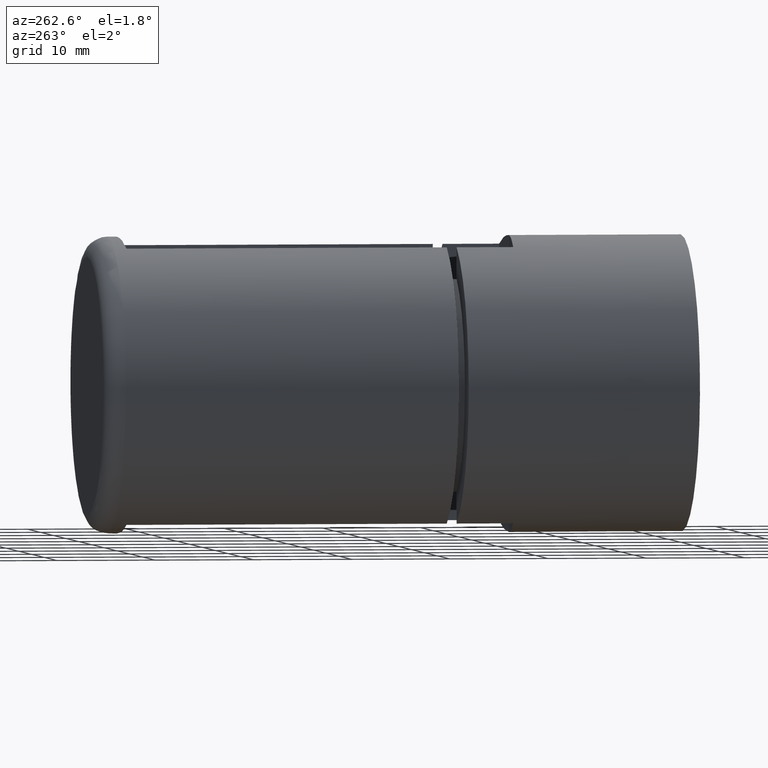
[diagram: clean part render]
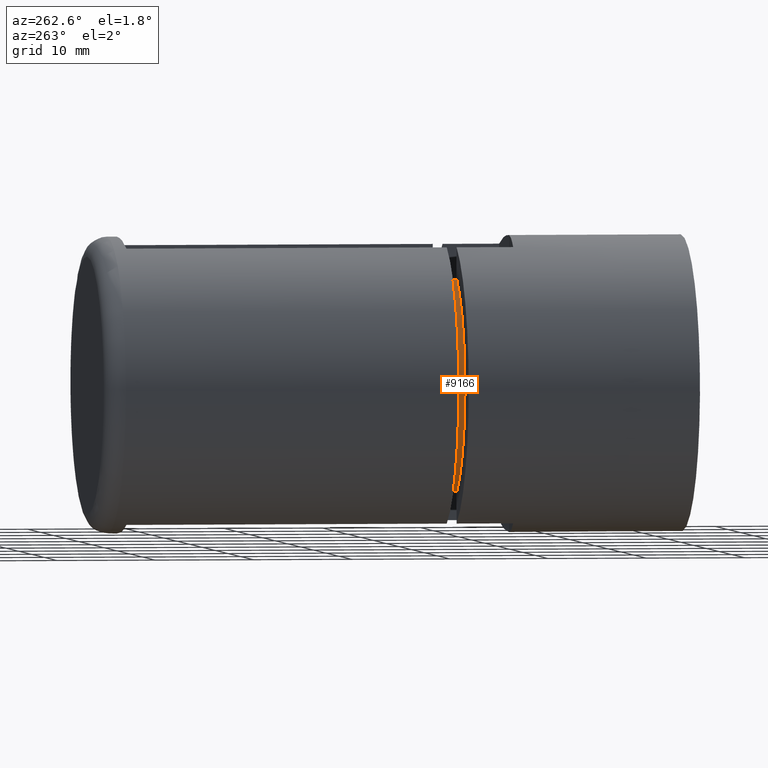
[diagram: same view with one face highlighted and labeled with its STEP entity id]
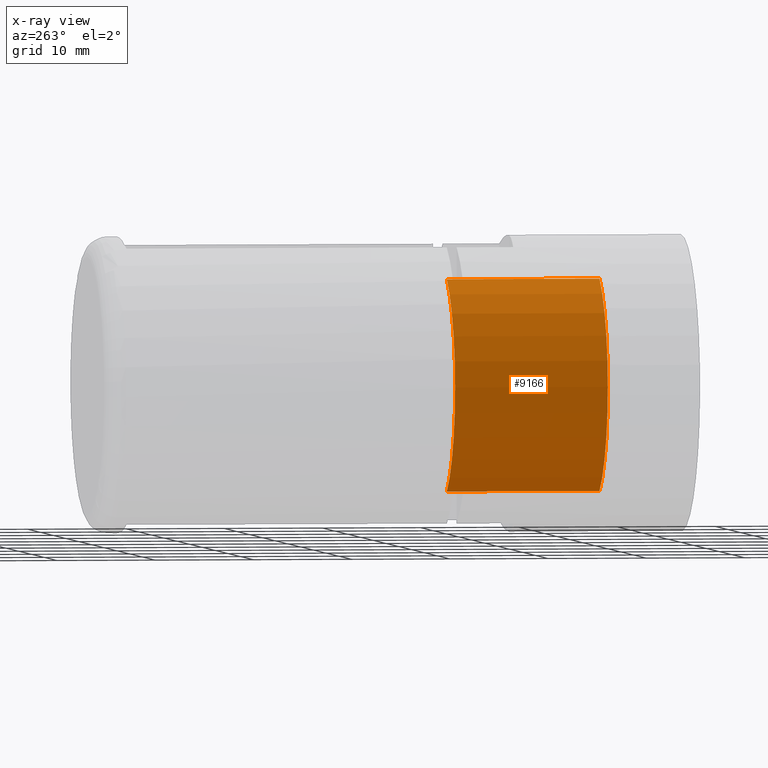
[diagram: x-ray of the same camera — body ghosted, the highlighted face saturated]
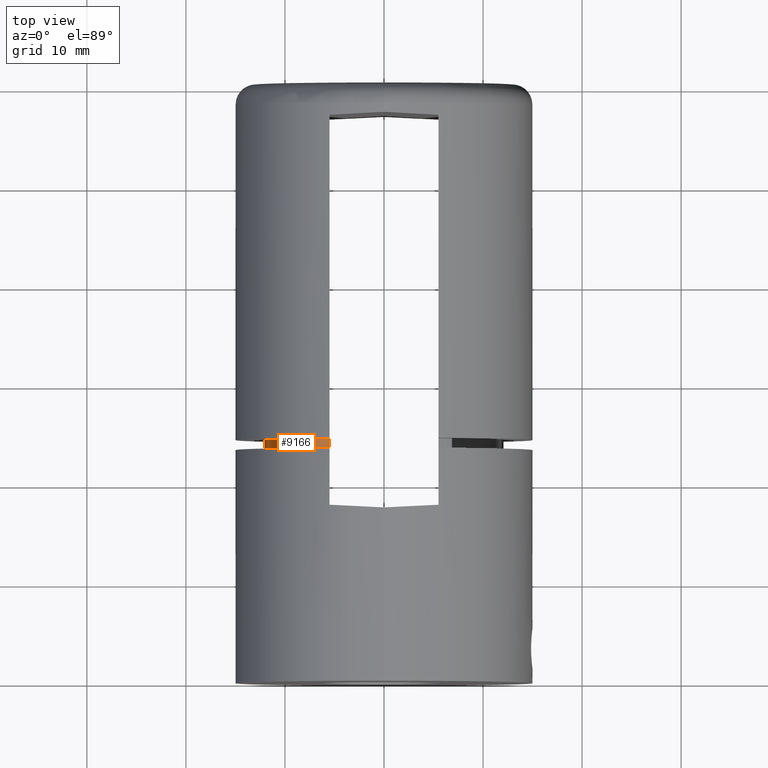
[diagram: same view with one face highlighted and labeled with its STEP entity id]
A machine part, auxiliary view. The second image highlights one B-rep face of the part: STEP entity #9166.
The next image is the same camera in x-ray: the body ghosted, the highlighted face saturated — about 0% of this face is hidden behind the body in this view.
A second angle (top view) of the same face is appended — the face is thin or edge-on in the first view.
In plain terms, the highlighted cylindrical surface (partial cylindrical patch) has radius 12.05 mm, axis along (-0, 1, 0).
Its self-contained STEP definition (entity closure, byte-faithful):
#880 = EDGE_CURVE ( 'NONE', #3089, #2748, #16607, .T. ) ;
#2538 = EDGE_LOOP ( 'NONE', ( #4420, #10798, #4404, #9576 ) ) ;
#2612 = CARTESIAN_POINT ( 'NONE',  ( -5.500000000000000900, 53.94999999999999600, -10.72159036710506000 ) ) ;
#2748 = VERTEX_POINT ( 'NONE', #9298 ) ;
#3089 = VERTEX_POINT ( 'NONE', #10229 ) ;
#3154 = EDGE_CURVE ( 'NONE', #9157, #12752, #4128, .T. ) ;
#3709 = CIRCLE ( 'NONE', #16346, 12.05000000000000100 ) ;
#4084 = EDGE_CURVE ( 'NONE', #2748, #9157, #3709, .T. ) ;
#4128 = LINE ( 'NONE', #2612, #4965 ) ;
#4138 = DIRECTION ( 'NONE',  ( 0.0000000000000000000, 0.0000000000000000000, 1.000000000000000000 ) ) ;
#4159 = CARTESIAN_POINT ( 'NONE',  ( 0.0000000000000000000, 52.94999999999998200, 0.0000000000000000000 ) ) ;
#4404 = ORIENTED_EDGE ( 'NONE', *, *, #3154, .T. ) ;
#4420 = ORIENTED_EDGE ( 'NONE', *, *, #880, .T. ) ;
#4965 = VECTOR ( 'NONE', #10746, 1000.000000000000000 ) ;
#5338 = DIRECTION ( 'NONE',  ( 0.0000000000000000000, -1.000000000000000000, 0.0000000000000000000 ) ) ;
#6175 = CARTESIAN_POINT ( 'NONE',  ( -5.500000000000000900, 52.94999999999998200, -10.72159036710506000 ) ) ;
#6219 = VECTOR ( 'NONE', #10496, 1000.000000000000000 ) ;
#8278 = FACE_OUTER_BOUND ( 'NONE', #2538, .T. ) ;
#8900 = CARTESIAN_POINT ( 'NONE',  ( 0.0000000000000000000, 53.94999999999999600, 0.0000000000000000000 ) ) ;
#9157 = VERTEX_POINT ( 'NONE', #6175 ) ;
#9166 = ADVANCED_FACE ( 'NONE', ( #8278 ), #15785, .T. ) ;
#9298 = CARTESIAN_POINT ( 'NONE',  ( -5.499999999999999100, 52.94999999999998200, 10.72159036710506000 ) ) ;
#9446 = DIRECTION ( 'NONE',  ( 0.0000000000000000000, 1.000000000000000000, 0.0000000000000000000 ) ) ;
#9576 = ORIENTED_EDGE ( 'NONE', *, *, #12021, .T. ) ;
#9768 = CARTESIAN_POINT ( 'NONE',  ( -5.500000000000000900, 37.39999999999999900, -10.72159036710506000 ) ) ;
#10229 = CARTESIAN_POINT ( 'NONE',  ( -5.500000000000000000, 37.39999999999999900, 10.72159036710506200 ) ) ;
#10240 = CIRCLE ( 'NONE', #16975, 12.05000000000000100 ) ;
#10285 = DIRECTION ( 'NONE',  ( 0.0000000000000000000, 0.0000000000000000000, -1.000000000000000000 ) ) ;
#10496 = DIRECTION ( 'NONE',  ( 0.0000000000000000000, 1.000000000000000000, 0.0000000000000000000 ) ) ;
#10692 = CARTESIAN_POINT ( 'NONE',  ( 0.0000000000000000000, 37.39999999999999900, 0.0000000000000000000 ) ) ;
#10746 = DIRECTION ( 'NONE',  ( -0.0000000000000000000, -1.000000000000000000, -0.0000000000000000000 ) ) ;
#10798 = ORIENTED_EDGE ( 'NONE', *, *, #4084, .T. ) ;
#11232 = AXIS2_PLACEMENT_3D ( 'NONE', #8900, #16824, #10285 ) ;
#11772 = CARTESIAN_POINT ( 'NONE',  ( -5.499999999999999100, 53.94999999999999600, 10.72159036710506000 ) ) ;
#12021 = EDGE_CURVE ( 'NONE', #12752, #3089, #10240, .T. ) ;
#12215 = DIRECTION ( 'NONE',  ( 0.0000000000000000000, 0.0000000000000000000, 1.000000000000000000 ) ) ;
#12752 = VERTEX_POINT ( 'NONE', #9768 ) ;
#15785 = CYLINDRICAL_SURFACE ( 'NONE', #11232, 12.05000000000000100 ) ;
#16346 = AXIS2_PLACEMENT_3D ( 'NONE', #4159, #5338, #12215 ) ;
#16607 = LINE ( 'NONE', #11772, #6219 ) ;
#16824 = DIRECTION ( 'NONE',  ( -0.0000000000000000000, -1.000000000000000000, -0.0000000000000000000 ) ) ;
#16975 = AXIS2_PLACEMENT_3D ( 'NONE', #10692, #9446, #4138 ) ;